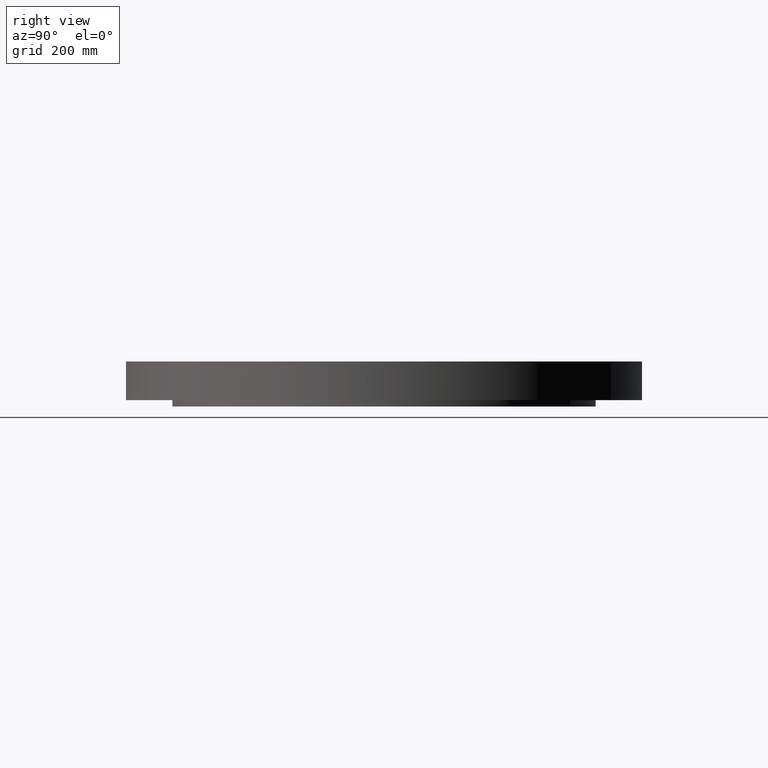
[diagram: clean part render]
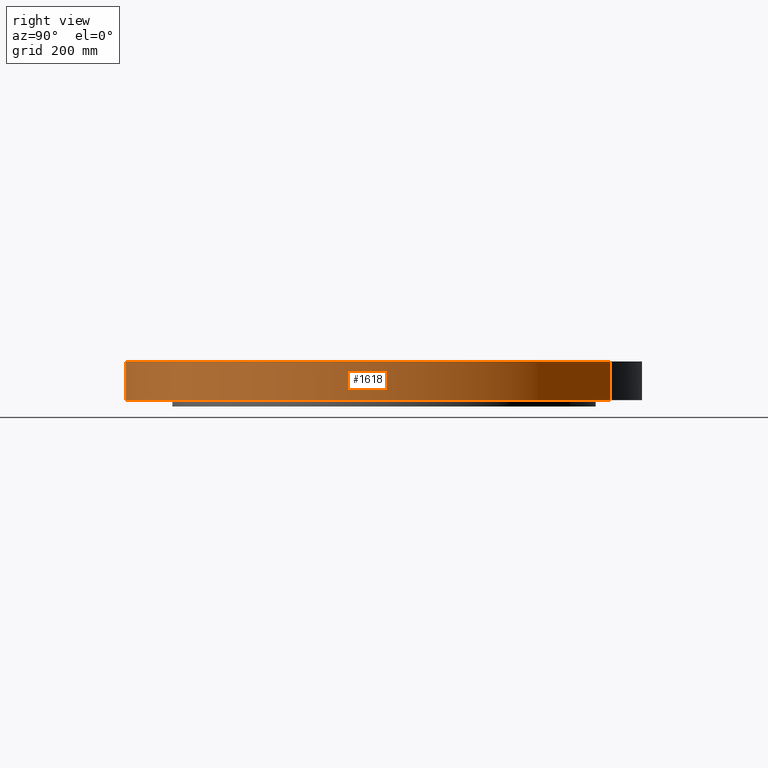
[diagram: same view with one face highlighted and labeled with its STEP entity id]
A machine part, right view. The second image highlights one B-rep face of the part: STEP entity #1618.
In plain terms, the highlighted cylindrical surface (partial cylindrical patch) has radius 457.2 mm, axis along (0, 0, -1).
Its self-contained STEP definition (entity closure, byte-faithful):
#1423=AXIS2_PLACEMENT_3D('Circle Axis2P3D',#1421,#1422,$) ;
#1591=AXIS2_PLACEMENT_3D('Cylinder Axis2P3D',#1588,#1589,#1590) ;
#1602=AXIS2_PLACEMENT_3D('Circle Axis2P3D',#1600,#1601,$) ;
#1416=CARTESIAN_POINT('Vertex',(-8.62965969491,-15.7964861141,1.39870617276E-015)) ;
#1418=CARTESIAN_POINT('Vertex',(8.62965969491,15.7964861141,1.39870617276E-015)) ;
#1421=CARTESIAN_POINT('Axis2P3D Location',(0.,0.,0.)) ;
#1588=CARTESIAN_POINT('Axis2P3D Location',(0.,0.,1.12625)) ;
#1593=CARTESIAN_POINT('Line Origine',(8.62965969491,15.7964861141,1.34500000001)) ;
#1597=CARTESIAN_POINT('Vertex',(8.62965969491,15.7964861141,2.69000000001)) ;
#1600=CARTESIAN_POINT('Axis2P3D Location',(0.,0.,2.69000000001)) ;
#1604=CARTESIAN_POINT('Vertex',(-8.62965969491,-15.7964861141,2.69000000001)) ;
#1607=CARTESIAN_POINT('Line Origine',(-8.62965969491,-15.7964861141,1.34500000001)) ;
#1422=DIRECTION('Axis2P3D Direction',(0.,0.,-0.0393700787402)) ;
#1589=DIRECTION('Axis2P3D Direction',(0.,0.,-0.0393700787402)) ;
#1590=DIRECTION('Axis2P3D XDirection',(-0.0188750212049,-0.0345504945626,0.)) ;
#1594=DIRECTION('Vector Direction',(0.,0.,-0.0393700787402)) ;
#1601=DIRECTION('Axis2P3D Direction',(0.,0.,-0.0393700787402)) ;
#1608=DIRECTION('Vector Direction',(0.,0.,-0.0393700787402)) ;
#1595=VECTOR('Line Direction',#1594,0.0393700787402) ;
#1609=VECTOR('Line Direction',#1608,0.0393700787402) ;
#1613=ORIENTED_EDGE('',*,*,#1425,.F.) ;
#1614=ORIENTED_EDGE('',*,*,#1599,.T.) ;
#1615=ORIENTED_EDGE('',*,*,#1606,.T.) ;
#1616=ORIENTED_EDGE('',*,*,#1611,.F.) ;
#1618=ADVANCED_FACE('PartBody',(#1617),#1592,.T.) ;
#1424=CIRCLE('generated circle',#1423,18.0000000001) ;
#1603=CIRCLE('generated circle',#1602,18.0000000001) ;
#1592=CYLINDRICAL_SURFACE('generated cylinder',#1591,18.0000000001) ;
#1425=EDGE_CURVE('',#1419,#1417,#1424,.T.) ;
#1599=EDGE_CURVE('',#1419,#1598,#1596,.F.) ;
#1606=EDGE_CURVE('',#1598,#1605,#1603,.T.) ;
#1611=EDGE_CURVE('',#1417,#1605,#1610,.F.) ;
#1612=EDGE_LOOP('',(#1613,#1614,#1615,#1616)) ;
#1617=FACE_OUTER_BOUND('',#1612,.T.) ;
#1596=LINE('Line',#1593,#1595) ;
#1610=LINE('Line',#1607,#1609) ;
#1417=VERTEX_POINT('',#1416) ;
#1419=VERTEX_POINT('',#1418) ;
#1598=VERTEX_POINT('',#1597) ;
#1605=VERTEX_POINT('',#1604) ;